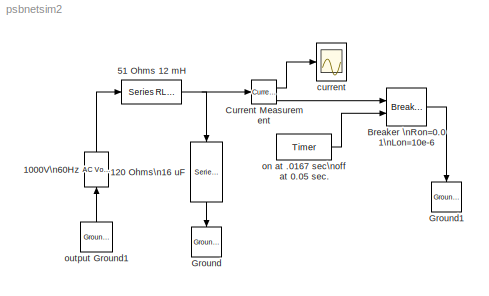
MODEL psbnetsim2
KIND model
BLOCK [Reference] 1000V\n60Hz  REF=powerlib2/Electrical\nSources/AC Voltage Source
  A = 1000
  F = 60
  P = 0
  PSBOutputType = 1
  Ports = [1, 1]
  SourceBlock = powerlib2/Electrical\nSources/AC Voltage Source
  SourceType = AC Voltage Source
  Tag = PoWeRsYsTeMbLoCk
  mesure = None
  stime = 0
BLOCK [Reference] 120 Ohms\n16 uF   REF=powerlib2/Elements/Series RLC Branch
  PSBOutputType = 1
  Ports = [1, 1]
  SourceBlock = powerlib2/Elements/Series RLC Branch
  SourceType = Series RLC Branch
  Tag = PoWeRsYsTeMbLoCk
  a = 120
  b = 0
  c = 16e-06
  mesure = None
BLOCK [Reference] 51 Ohms  12 mH  REF=powerlib2/Elements/Series RLC Branch
  PSBOutputType = 1
  Ports = [1, 1]
  SourceBlock = powerlib2/Elements/Series RLC Branch
  SourceType = Series RLC Branch
  Tag = PoWeRsYsTeMbLoCk
  a = 51
  b = 12e-03
  c = inf
  mesure = None
BLOCK [Reference] Breaker \nRon=0.01\nLon=10e-6  REF=powerlib2/Elements/Breaker
  PSBOutputType = 1
  Ports = [2, 1]
  SourceBlock = powerlib2/Elements/Breaker
  SourceType = Breaker
  Tag = PoWeRsYsTeMbLoCk
  Ts = 0
  a = 0.01
  c = 0
  comext = on
  cs = 0
  mesure = None
  rs = inf
  times = [ 4/60  5/60 ]
BLOCK [Reference] Current Measurement  REF=powerlib2/Measurements/Current Measurement
  OutputType = Magnitude
  PSBOutputType = 01
  PSBequivalent = 0
  PhasorSimulation = off
  Ports = [1, 2]
  SourceBlock = powerlib2/Measurements/Current Measurement
  SourceType = Current Measurement
  Tag = PoWeRsYsTeMmEaSuReMeNt
BLOCK [Reference] Ground  REF=powerlib2/Connectors/Ground (input)
  Ports = [1]
  SourceBlock = powerlib2/Connectors/Ground (input)
  SourceType = Ground
  Tag = PoWeRsYsTeMbLoCk
BLOCK [Reference] Ground1  REF=powerlib2/Connectors/Ground (input)
  Ports = [1]
  SourceBlock = powerlib2/Connectors/Ground (input)
  SourceType = Ground
  Tag = PoWeRsYsTeMbLoCk
BLOCK [Scope] current
  DataFormat = Array
  NumInputPorts = 1
  Ports = [1]
  TickLabels = on
  TimeRange = 0.06
  YMax = 20
  YMin = -20
BLOCK [Reference] on at .0167 sec\noff at 0.05 sec.  REF=powerlib_extras/Control \nBlocks/Timer
  Ports = [0, 1]
  SourceBlock = powerlib_extras/Control \nBlocks/Timer
  SourceType = Timer
  e = [0 1 0 ]
  t = [0 1/60 3/60]
BLOCK [Reference] output Ground1  REF=powerlib2/Connectors/Ground (output)
  PSBOutputType = 1
  Ports = [0, 1]
  SourceBlock = powerlib2/Connectors/Ground (output)
  SourceType = Ground
  Tag = PoWeRsYsTeMbLoCk
LINE 1000V\n60Hz:1 -> 51 Ohms  12 mH:1
LINE 120 Ohms\n16 uF :1 -> Ground:1
NET 51 Ohms  12 mH:1 -> 120 Ohms\n16 uF :1, Current Measurement:1
LINE Breaker \nRon=0.01\nLon=10e-6:1 -> Ground1:1
LINE Current Measurement:1 -> current:1
LINE Current Measurement:2 -> Breaker \nRon=0.01\nLon=10e-6:1
LINE on at .0167 sec\noff at 0.05 sec.:1 -> Breaker \nRon=0.01\nLon=10e-6:2
LINE output Ground1:1 -> 1000V\n60Hz:1
note: NET lines group one-source signal fan-out (src -> all destinations, sorted); 1:1 wires keep LINE
